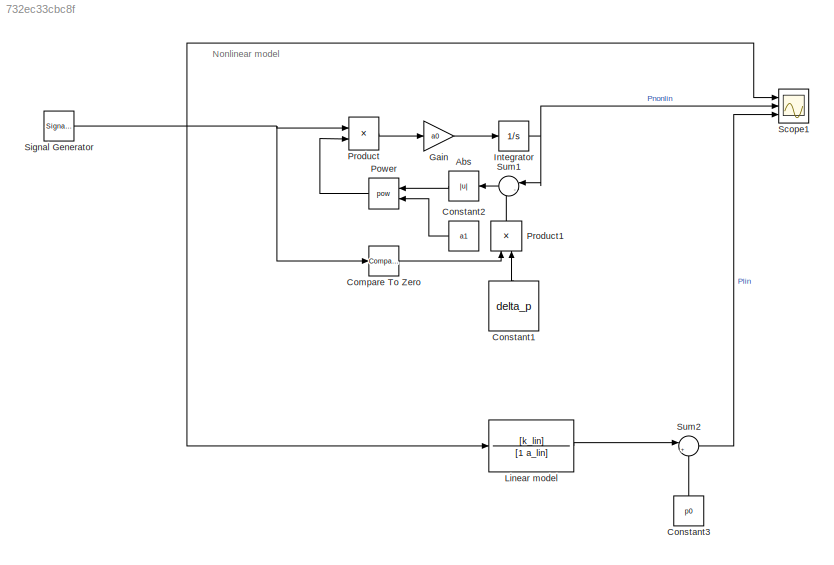
MODEL slx_732ec33cbc8f
KIND model
CONFIG AbsTol = auto
CONFIG EnableMultiTasking = off
CONFIG FixedStep = 1e-3
CONFIG MaxStep = auto
CONFIG MinStep = auto
CONFIG PreLoadFcn = delta_p = 0.6; % MPa\np_init = 0.101325; % MPa\nT_init = 293.15; % K\nT_atm = 293.15; % K\n\nA_valve_max = 4e-6; % m^2\nA_valve_min = 1e-10; % m^2\n\nA_pipe = 5e-6; % m^2\nL_pipe = 1; % m\n\nA_piston = 0.002; % m^2\nL_piston = 0.2; % m
CONFIG RelTol = 1e-3
CONFIG SampleTimeConstraint = Unconstrained
CONFIG Solver = ode15s
CONFIG SolverName = ode15s
CONFIG StartTime = 0.0
CONFIG StopTime = 60
BLOCK [Abs] Abs
  SaturateOnIntegerOverflow = off
BLOCK [Reference] Compare To Zero  REF=simulink/Logic and Bit
Operations/Compare
To Zero
  Ports = [1, 1]
  SourceBlock = simulink/Logic and Bit\nOperations/Compare\nTo Zero
  SourceProductBaseCode = SL
  SourceProductName = Simulink
  SourceType = Compare To Zero
BLOCK [Constant] Constant1
  Value = delta_p
BLOCK [Constant] Constant2
  Value = a1
BLOCK [Constant] Constant3
  Value = p0
BLOCK [Gain] Gain
  Gain = a0
  OutDataTypeStr = Inherit: Inherit via internal rule
  ParamDataTypeStr = Inherit: Inherit via internal rule
  SaturateOnIntegerOverflow = off
BLOCK [Integrator] Integrator
  InitialCondition = p0
  Ports = [1, 1]
BLOCK [TransferFcn] Linear model
  Denominator = [1 a_lin]
  Numerator = [k_lin]
BLOCK [Math] Power
  Operator = pow
  Ports = [2, 1]
BLOCK [Product] Product
  InputSameDT = off
  OutDataTypeStr = Inherit: Inherit via internal rule
  Ports = [2, 1]
  RndMeth = Floor
  SaturateOnIntegerOverflow = off
BLOCK [Product] Product1
  InputSameDT = off
  OutDataTypeStr = Inherit: Inherit via internal rule
  Ports = [2, 1]
  RndMeth = Floor
  SaturateOnIntegerOverflow = off
BLOCK [Scope] Scope1
  Floating = off
  NumInputPorts = 3
  Ports = [3]
  ScopeSpecificationString = Simulink.scopes.TimeScopeBlockCfg('CurrentConfiguration', extmgr.ConfigurationSet(extmgr.Configuration('Core','General UI',true),extmgr.Configuration('Core','Source UI',true),extmgr.Configuration('Sources','WiredSimulink',true,'DataLoggingVariableName','ScopeData1'),extmgr.Configuration('Visuals','Time Domain',true,'SerializedDisplays',{struct('MinYLimReal','-4.08828','MaxYLimReal','9.67359','YLab...<+1892ch>
BLOCK [SignalGenerator] Signal Generator
  Amplitude = 2
  Frequency = 0.2
  Ports = [0, 1]
  Units = rad/sec
  WaveForm = square
BLOCK [Sum] Sum1
  IconShape = round
  InputSameDT = off
  Inputs = |-+
  OutDataTypeStr = Inherit: Inherit via internal rule
  Ports = [2, 1]
  SaturateOnIntegerOverflow = off
BLOCK [Sum] Sum2
  IconShape = round
  InputSameDT = off
  Inputs = |++
  OutDataTypeStr = Inherit: Inherit via internal rule
  Ports = [2, 1]
  SaturateOnIntegerOverflow = off
ANNOTATION (root): Nonlinear model
LINE Abs:1 -> Power:1
LINE Compare To Zero:1 -> Product1:1
LINE Constant1:1 -> Product1:2
LINE Constant2:1 -> Power:2
LINE Constant3:1 -> Sum2:2
LINE Gain:1 -> Integrator:1
NET Integrator:1 -> Scope1:2, Sum1:1
LINE Linear model:1 -> Sum2:1
LINE Power:1 -> Product:2
LINE Product1:1 -> Sum1:2
LINE Product:1 -> Gain:1
NET Signal Generator:1 -> Compare To Zero:1, Linear model:1, Product:1, Scope1:1
LINE Sum1:1 -> Abs:1
LINE Sum2:1 -> Scope1:3
note: NET lines group one-source signal fan-out (src -> all destinations, sorted); 1:1 wires keep LINE
